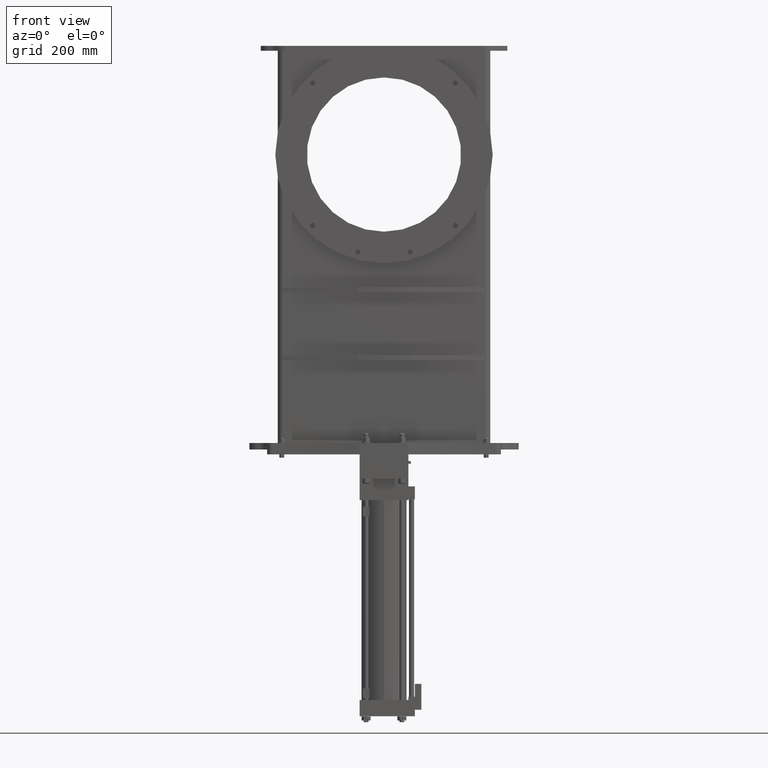
[diagram: clean part render]
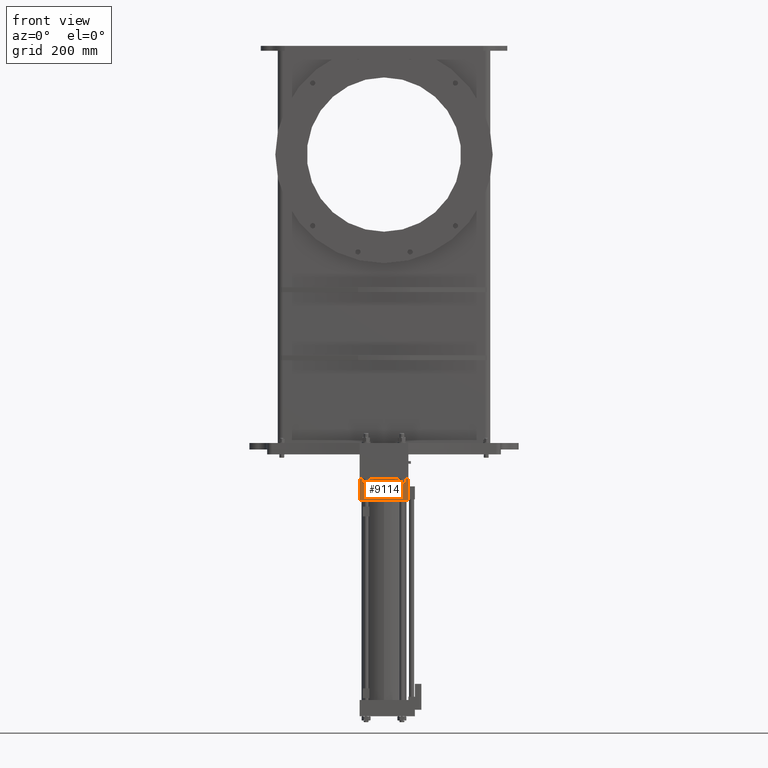
[diagram: same view with one face highlighted and labeled with its STEP entity id]
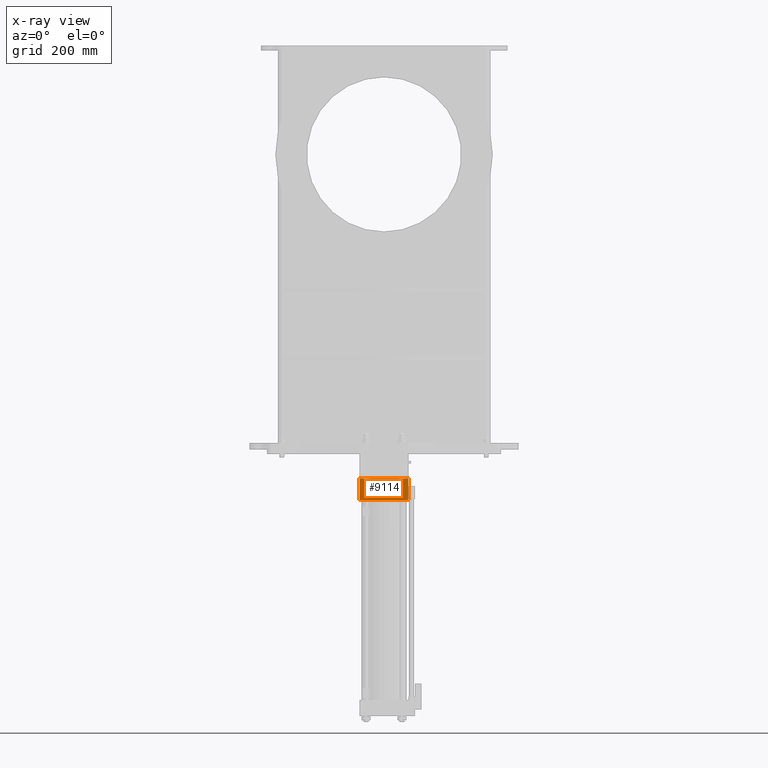
[diagram: x-ray of the same camera — body ghosted, the highlighted face saturated]
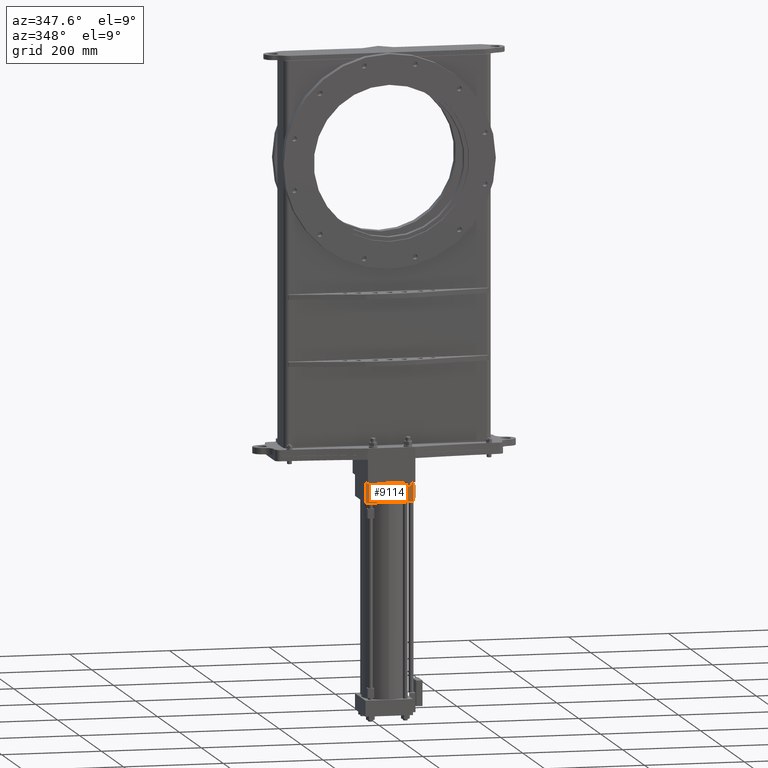
[diagram: same view with one face highlighted and labeled with its STEP entity id]
A machine part, front view. The second image highlights one B-rep face of the part: STEP entity #9114.
The next image is the same camera in x-ray: the body ghosted, the highlighted face saturated — about 0% of this face is hidden behind the body in this view.
A second angle (auxiliary view) of the same face is appended — the face is thin or edge-on in the first view.
In plain terms, the highlighted planar face has unit normal (0, 1, -0).
Its self-contained STEP definition (entity closure, byte-faithful):
#576 = VERTEX_POINT ( 'NONE', #8523 ) ;
#1701 = DIRECTION ( 'NONE',  ( 5.030698080332741600E-016, 1.000000000000000000, -3.682666505295027900E-016 ) ) ;
#1869 = VECTOR ( 'NONE', #10685, 39.37007874015748100 ) ;
#1993 = VERTEX_POINT ( 'NONE', #20898 ) ;
#2142 = DIRECTION ( 'NONE',  ( -1.000000000000000000, 5.585809592645316900E-016, 1.545021906791212000E-017 ) ) ;
#4645 = ORIENTED_EDGE ( 'NONE', *, *, #14531, .F. ) ;
#5931 = PLANE ( 'NONE',  #7415 ) ;
#5991 = EDGE_CURVE ( 'NONE', #1993, #6997, #17540, .T. ) ;
#6013 = VERTEX_POINT ( 'NONE', #24773 ) ;
#6997 = VERTEX_POINT ( 'NONE', #12564 ) ;
#7415 = AXIS2_PLACEMENT_3D ( 'NONE', #8118, #1701, #15992 ) ;
#7996 = EDGE_LOOP ( 'NONE', ( #13662, #10540, #4645, #11458 ) ) ;
#8118 = CARTESIAN_POINT ( 'NONE',  ( 1.874999999999999600, -3.660100000000005200, -26.62599999999999800 ) ) ;
#8523 = CARTESIAN_POINT ( 'NONE',  ( 1.874999999999999600, -3.660100000000005200, -26.62599999999999800 ) ) ;
#8569 = DIRECTION ( 'NONE',  ( -1.000000000000000000, 5.585809592645316900E-016, 1.545021906791212000E-017 ) ) ;
#9114 = ADVANCED_FACE ( 'NONE', ( #19591 ), #5931, .F. ) ;
#10540 = ORIENTED_EDGE ( 'NONE', *, *, #19230, .F. ) ;
#10685 = DIRECTION ( 'NONE',  ( 1.545021906791233900E-017, 3.682666505295027900E-016, 1.000000000000000000 ) ) ;
#10821 = EDGE_CURVE ( 'NONE', #576, #1993, #16998, .T. ) ;
#11458 = ORIENTED_EDGE ( 'NONE', *, *, #10821, .T. ) ;
#12564 = CARTESIAN_POINT ( 'NONE',  ( -1.875000000000002200, -3.660100000000001700, -24.96999999999999900 ) ) ;
#13662 = ORIENTED_EDGE ( 'NONE', *, *, #5991, .T. ) ;
#14081 = VECTOR ( 'NONE', #8569, 39.37007874015748100 ) ;
#14459 = LINE ( 'NONE', #18280, #22004 ) ;
#14531 = EDGE_CURVE ( 'NONE', #576, #6013, #14459, .T. ) ;
#15528 = CARTESIAN_POINT ( 'NONE',  ( -1.875000000000002200, -3.660100000000003000, -26.62599999999999800 ) ) ;
#15992 = DIRECTION ( 'NONE',  ( -1.545021906791233900E-017, -3.682666505295027900E-016, -1.000000000000000000 ) ) ;
#16599 = CARTESIAN_POINT ( 'NONE',  ( 1.874999999999999600, -3.660100000000005200, -26.62599999999999800 ) ) ;
#16879 = CARTESIAN_POINT ( 'NONE',  ( 1.874999999999999600, -3.660100000000003900, -24.96999999999999900 ) ) ;
#16998 = LINE ( 'NONE', #16599, #1869 ) ;
#17540 = LINE ( 'NONE', #16879, #14081 ) ;
#18280 = CARTESIAN_POINT ( 'NONE',  ( 1.874999999999999600, -3.660100000000005200, -26.62599999999999800 ) ) ;
#18941 = LINE ( 'NONE', #15528, #25515 ) ;
#19230 = EDGE_CURVE ( 'NONE', #6013, #6997, #18941, .T. ) ;
#19591 = FACE_OUTER_BOUND ( 'NONE', #7996, .T. ) ;
#20898 = CARTESIAN_POINT ( 'NONE',  ( 1.874999999999999600, -3.660100000000003900, -24.96999999999999900 ) ) ;
#22004 = VECTOR ( 'NONE', #2142, 39.37007874015748100 ) ;
#23420 = DIRECTION ( 'NONE',  ( 1.545021906791233900E-017, 3.682666505295027900E-016, 1.000000000000000000 ) ) ;
#24773 = CARTESIAN_POINT ( 'NONE',  ( -1.875000000000002200, -3.660100000000003000, -26.62599999999999800 ) ) ;
#25515 = VECTOR ( 'NONE', #23420, 39.37007874015748100 ) ;